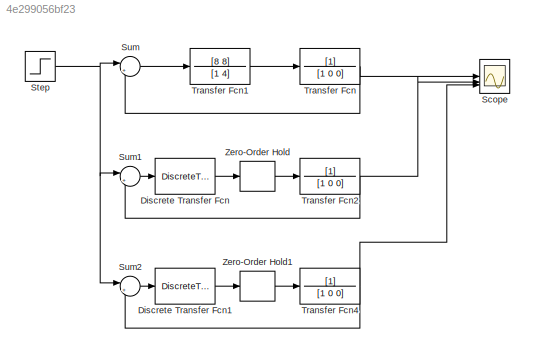
MODEL slx_4e299056bf23
KIND model
CONFIG AbsTol = auto
CONFIG EnableMultiTasking = off
CONFIG FixedStep = auto
CONFIG MaxStep = auto
CONFIG MinStep = auto
CONFIG RelTol = 1e-3
CONFIG SampleTimeConstraint = Unconstrained
CONFIG SolverName = VariableStepAuto
CONFIG StartTime = 0.0
CONFIG StopTime = 10.0
BLOCK [DiscreteTransferFcn] Discrete Transfer Fcn
  Denominator = [1+4*T -1]
  InputPortMap = u0
  Numerator = [8+8*T -8]
BLOCK [DiscreteTransferFcn] Discrete Transfer Fcn1
  Denominator = [2+4*T 4*T-2]
  InputPortMap = u0
  Numerator = [16+8*T 8*T-16]
BLOCK [Scope] Scope
  Floating = off
  NumInputPorts = 3
  ScopeSpecificationString = Simulink.scopes.TimeScopeBlockCfg('CurrentConfiguration', extmgr.ConfigurationSet(extmgr.Configuration('Core','General UI',true),extmgr.Configuration('Core','Source UI',true),extmgr.Configuration('Sources','WiredSimulink',true),extmgr.Configuration('Visuals','Time Domain',true,'SerializedDisplays',{struct('MinYLimReal','-0.18077','MaxYLimReal','1.62696','YLabelReal','','MinYLimMag','0.00000','MaxY...<+1402ch>
BLOCK [Step] Step
  SampleTime = 0
BLOCK [Sum] Sum
  Inputs = |+-
BLOCK [Sum] Sum1
  Inputs = |+-
BLOCK [Sum] Sum2
  Inputs = |+-
BLOCK [TransferFcn] Transfer Fcn
  Denominator = [1 0 0]
BLOCK [TransferFcn] Transfer Fcn1
  Denominator = [1 4]
  Numerator = [8 8]
BLOCK [TransferFcn] Transfer Fcn2
  Denominator = [1 0 0]
BLOCK [TransferFcn] Transfer Fcn4
  Denominator = [1 0 0]
BLOCK [ZeroOrderHold] Zero-Order Hold
  SampleTime = T
BLOCK [ZeroOrderHold] Zero-Order Hold1
  SampleTime = T
LINE Discrete Transfer Fcn1:1 -> Zero-Order Hold1:1
LINE Discrete Transfer Fcn:1 -> Zero-Order Hold:1
NET Step:1 -> Sum1:1, Sum2:1, Sum:1
LINE Sum1:1 -> Discrete Transfer Fcn:1
LINE Sum2:1 -> Discrete Transfer Fcn1:1
LINE Sum:1 -> Transfer Fcn1:1
LINE Transfer Fcn1:1 -> Transfer Fcn:1
NET Transfer Fcn2:1 -> Scope:2, Sum1:2
NET Transfer Fcn4:1 -> Scope:3, Sum2:2
NET Transfer Fcn:1 -> Scope:1, Sum:2
LINE Zero-Order Hold1:1 -> Transfer Fcn4:1
LINE Zero-Order Hold:1 -> Transfer Fcn2:1
note: NET lines group one-source signal fan-out (src -> all destinations, sorted); 1:1 wires keep LINE
